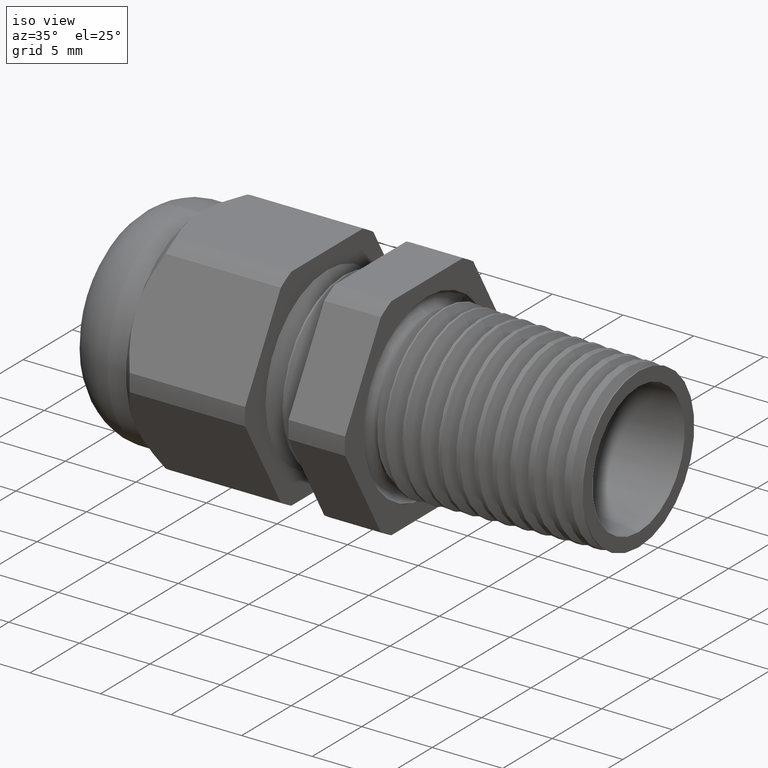
[diagram: clean part render]
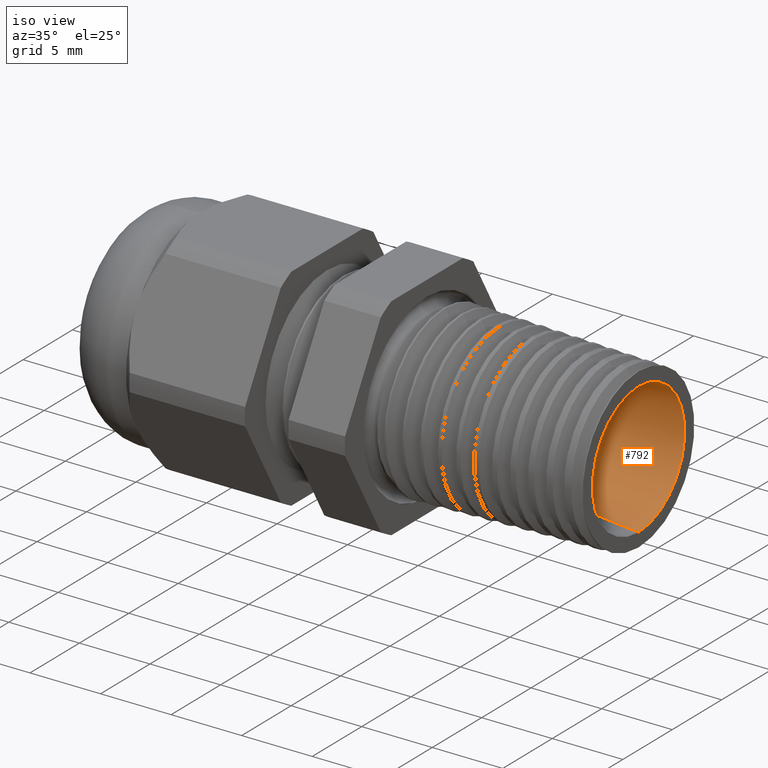
[diagram: same view with one face highlighted and labeled with its STEP entity id]
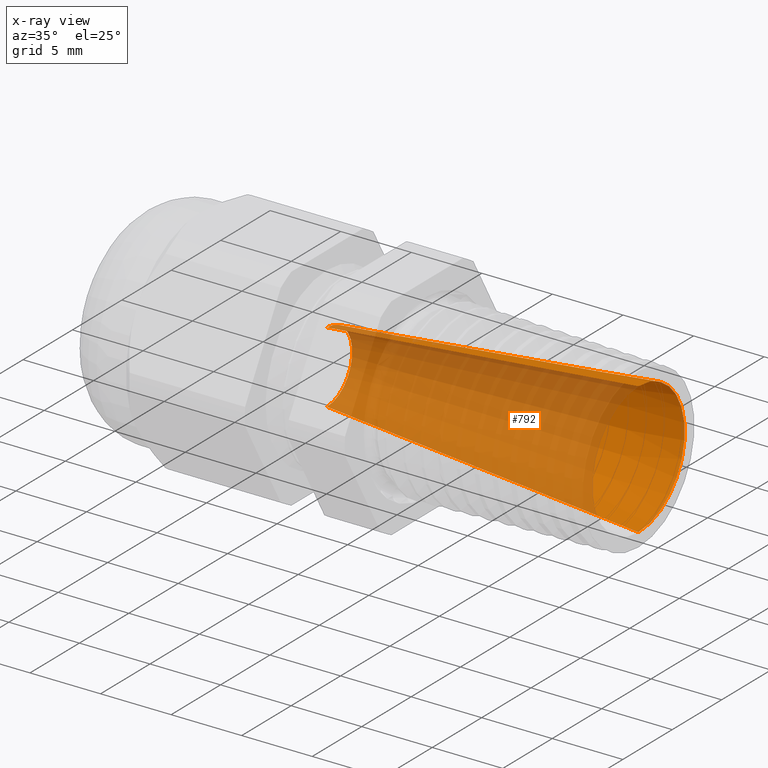
[diagram: x-ray of the same camera — body ghosted, the highlighted face saturated]
A machine part, iso view. The second image highlights one B-rep face of the part: STEP entity #792.
The next image is the same camera in x-ray: the body ghosted, the highlighted face saturated — about 71% of this face is hidden behind the body in this view.
In plain terms, the highlighted conical surface has half-angle 5.506 deg.
Its self-contained STEP definition (entity closure, byte-faithful):
#77 = VERTEX_POINT ( 'NONE', #1318 ) ;
#244 = ORIENTED_EDGE ( 'NONE', *, *, #718, .F. ) ;
#246 = ORIENTED_EDGE ( 'NONE', *, *, #3710, .T. ) ;
#247 = ORIENTED_EDGE ( 'NONE', *, *, #876, .T. ) ;
#715 = EDGE_LOOP ( 'NONE', ( #791, #244, #246, #247 ) ) ;
#718 = EDGE_CURVE ( 'NONE', #3745, #77, #2443, .T. ) ;
#791 = ORIENTED_EDGE ( 'NONE', *, *, #3740, .F. ) ;
#792 = ADVANCED_FACE ( 'NONE', ( #2575 ), #2574, .F. ) ;
#876 = EDGE_CURVE ( 'NONE', #3713, #3741, #2720, .T. ) ;
#1318 = CARTESIAN_POINT ( 'NONE',  ( -0.5888188976377952700, 1.224646799147353300E-017, 0.1000000000000000100 ) ) ;
#2440 = DIRECTION ( 'NONE',  ( 0.0000000000000000000, 0.0000000000000000000, -1.000000000000000000 ) ) ;
#2441 = DIRECTION ( 'NONE',  ( 1.000000000000000000, 0.0000000000000000000, 0.0000000000000000000 ) ) ;
#2442 = AXIS2_PLACEMENT_3D ( 'NONE', #2448, #2441, #2440 ) ;
#2443 = CIRCLE ( 'NONE', #2442, 0.1000000000000000100 ) ;
#2448 = CARTESIAN_POINT ( 'NONE',  ( -0.5888188976377952700, 0.0000000000000000000, 0.0000000000000000000 ) ) ;
#2569 = DIRECTION ( 'NONE',  ( 0.0000000000000000000, 0.0000000000000000000, -1.000000000000000000 ) ) ;
#2570 = DIRECTION ( 'NONE',  ( 1.000000000000000000, 0.0000000000000000000, 0.0000000000000000000 ) ) ;
#2571 = CARTESIAN_POINT ( 'NONE',  ( -0.5888188976377952700, 0.0000000000000000000, 0.0000000000000000000 ) ) ;
#2572 = AXIS2_PLACEMENT_3D ( 'NONE', #2571, #2570, #2569 ) ;
#2574 = CONICAL_SURFACE ( 'NONE', #2572, 0.1000000000000000100, 0.09609831705620937300 ) ;
#2575 = FACE_OUTER_BOUND ( 'NONE', #715, .T. ) ;
#2716 = DIRECTION ( 'NONE',  ( 0.0000000000000000000, 0.0000000000000000000, -1.000000000000000000 ) ) ;
#2717 = DIRECTION ( 'NONE',  ( 1.000000000000000000, 0.0000000000000000000, 0.0000000000000000000 ) ) ;
#2718 = CARTESIAN_POINT ( 'NONE',  ( 0.2799999999999997500, 0.0000000000000000000, 0.0000000000000000000 ) ) ;
#2719 = AXIS2_PLACEMENT_3D ( 'NONE', #2718, #2717, #2716 ) ;
#2720 = CIRCLE ( 'NONE', #2719, 0.1837500000000000500 ) ;
#3303 = CARTESIAN_POINT ( 'NONE',  ( 0.2799999999999997500, 0.0000000000000000000, -0.1837500000000000500 ) ) ;
#3305 = DIRECTION ( 'NONE',  ( 0.9953861090995275200, 0.0000000000000000000, -0.09595047582843807500 ) ) ;
#3306 = VECTOR ( 'NONE', #3305, 39.37007874015748100 ) ;
#3307 = CARTESIAN_POINT ( 'NONE',  ( -0.5888188976377952700, 0.0000000000000000000, -0.1000000000000000100 ) ) ;
#3308 = LINE ( 'NONE', #3307, #3306 ) ;
#3313 = DIRECTION ( 'NONE',  ( 0.9953861090995275200, 1.175054430999621600E-017, 0.09595047582843807500 ) ) ;
#3314 = VECTOR ( 'NONE', #3313, 39.37007874015748100 ) ;
#3315 = CARTESIAN_POINT ( 'NONE',  ( -0.5888188976377952700, 1.224646799147353300E-017, 0.1000000000000000100 ) ) ;
#3316 = LINE ( 'NONE', #3315, #3314 ) ;
#3370 = CARTESIAN_POINT ( 'NONE',  ( -0.5888188976377952700, 0.0000000000000000000, -0.1000000000000000100 ) ) ;
#3375 = CARTESIAN_POINT ( 'NONE',  ( 0.2799999999999997500, 2.250288493433262400E-017, 0.1837500000000000500 ) ) ;
#3710 = EDGE_CURVE ( 'NONE', #3745, #3713, #3308, .T. ) ;
#3713 = VERTEX_POINT ( 'NONE', #3303 ) ;
#3740 = EDGE_CURVE ( 'NONE', #77, #3741, #3316, .T. ) ;
#3741 = VERTEX_POINT ( 'NONE', #3375 ) ;
#3745 = VERTEX_POINT ( 'NONE', #3370 ) ;